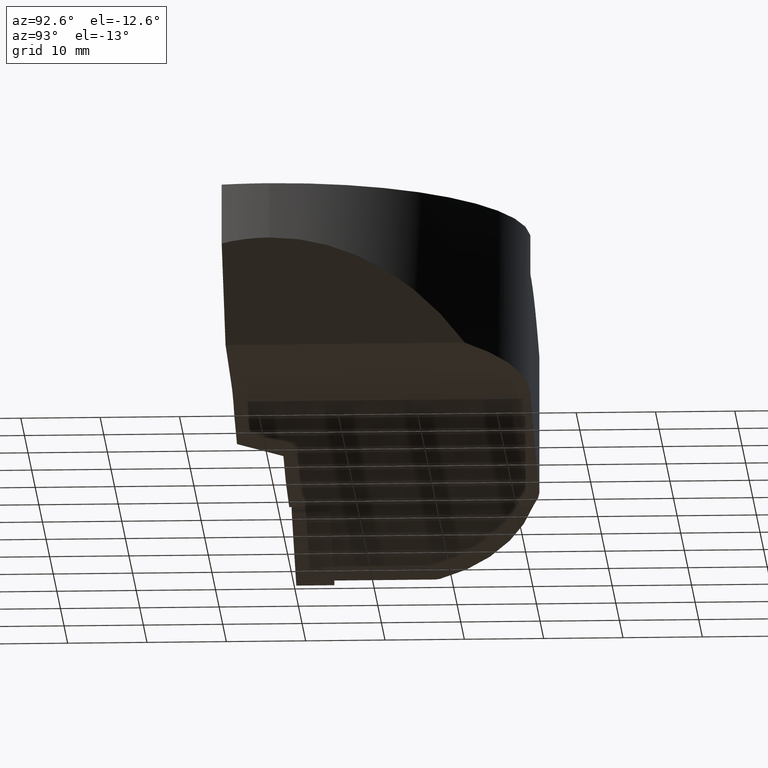
[diagram: clean part render]
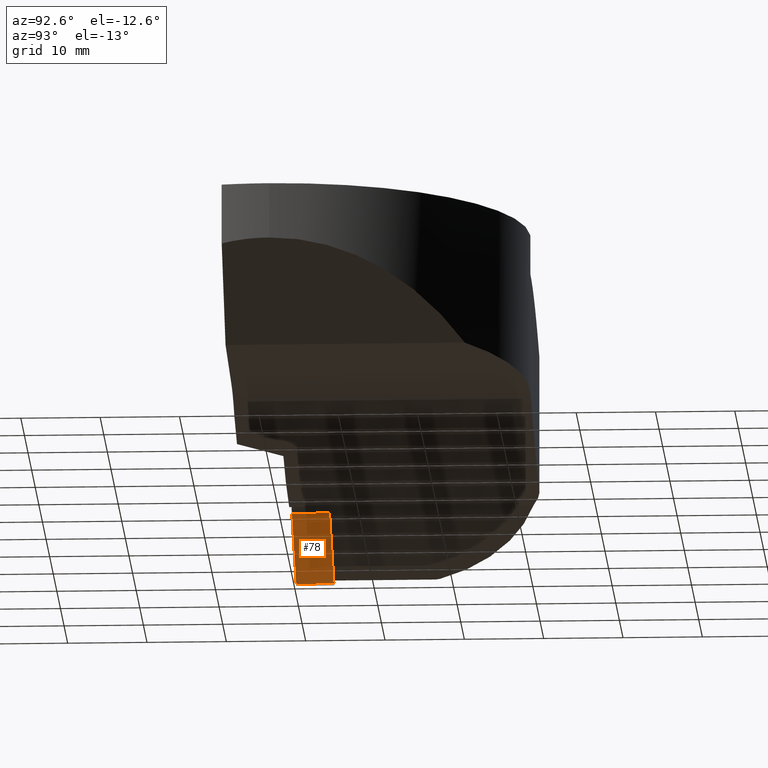
[diagram: same view with one face highlighted and labeled with its STEP entity id]
A machine part, auxiliary view. The second image highlights one B-rep face of the part: STEP entity #78.
In plain terms, the highlighted planar face has unit normal (0.4618, 0, -0.887).
Its self-contained STEP definition (entity closure, byte-faithful):
#78=ADVANCED_FACE('',(#118),#119,.T.);
#118=FACE_OUTER_BOUND('',#190,.T.);
#119=PLANE('',#191);
#190=EDGE_LOOP('',(#349,#350,#351,#352));
#191=AXIS2_PLACEMENT_3D('',#353,#354,#355);
#349=ORIENTED_EDGE('',*,*,#636,.T.);
#350=ORIENTED_EDGE('',*,*,#637,.F.);
#351=ORIENTED_EDGE('',*,*,#638,.T.);
#352=ORIENTED_EDGE('',*,*,#634,.T.);
#353=CARTESIAN_POINT('',(-31.5651933838088,4.76000000000001,-28.520022443674));
#354=DIRECTION('',(0.461789374011936,0.0,-0.886989613270451));
#355=DIRECTION('',(-0.886989613270451,0.0,-0.461789374011936));
#634=EDGE_CURVE('',#742,#740,#743,.T.);
#636=EDGE_CURVE('',#740,#745,#746,.T.);
#637=EDGE_CURVE('',#747,#745,#748,.T.);
#638=EDGE_CURVE('',#747,#742,#749,.T.);
#740=VERTEX_POINT('',#912);
#742=VERTEX_POINT('',#914);
#743=LINE('',#915,#916);
#745=VERTEX_POINT('',#918);
#746=LINE('',#919,#920);
#747=VERTEX_POINT('',#921);
#748=LINE('',#922,#923);
#749=LINE('',#924,#925);
#912=CARTESIAN_POINT('',(-31.5651933838088,8.32667268468867E-015,-28.520022443674));
#914=CARTESIAN_POINT('',(-31.5651933838088,4.76000000000001,-28.520022443674));
#915=CARTESIAN_POINT('',(-31.5651933838088,4.76000000000001,-28.520022443674));
#916=VECTOR('',#1187,10.0);
#918=CARTESIAN_POINT('',(-43.8291295034035,8.32667268468867E-015,-34.9049398078227));
#919=CARTESIAN_POINT('',(-43.8291295034035,9.43689570931383E-015,-34.9049398078227));
#920=VECTOR('',#1191,10.0);
#921=CARTESIAN_POINT('',(-43.8291295034035,4.76000000000001,-34.9049398078227));
#922=CARTESIAN_POINT('',(-43.8291295034035,4.76000000000001,-34.9049398078227));
#923=VECTOR('',#1192,10.0);
#924=CARTESIAN_POINT('',(-43.8291295034035,4.76000000000001,-34.9049398078227));
#925=VECTOR('',#1193,10.0);
#1187=DIRECTION('',(0.0,-1.0,0.0));
#1191=DIRECTION('',(-0.886989613270451,5.96547545500176E-032,-0.461789374011936));
#1192=DIRECTION('',(0.0,-1.0,0.0));
#1193=DIRECTION('',(0.886989613270451,-5.96547545500176E-032,0.461789374011936));